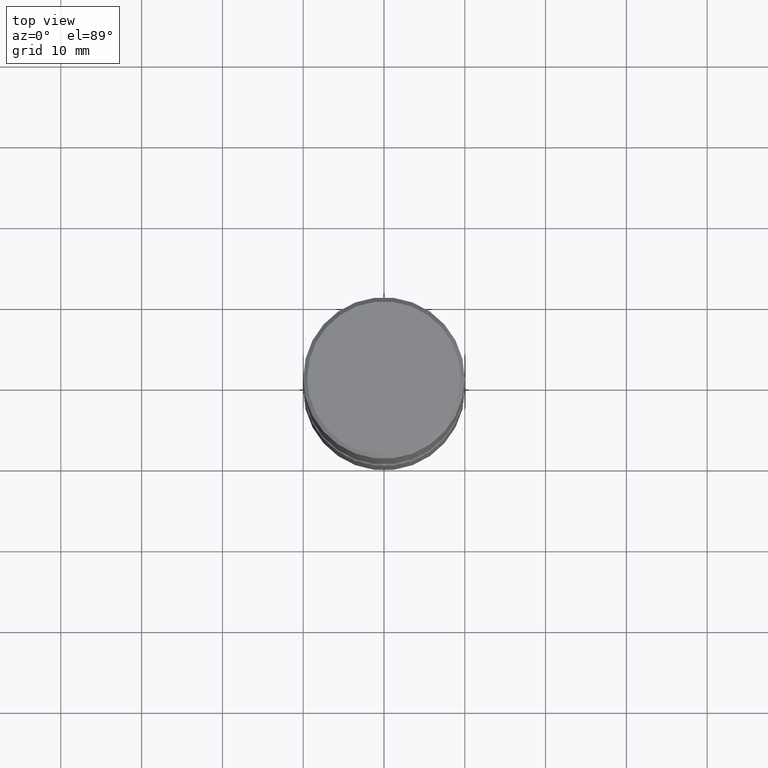
[diagram: clean part render]
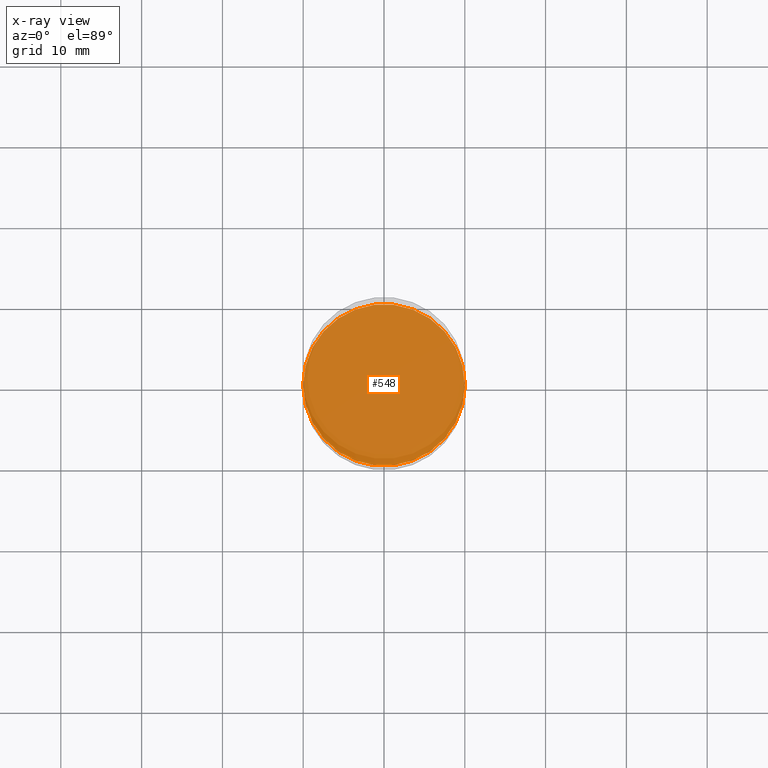
[diagram: x-ray — body ghosted, one internal face saturated and labeled with its STEP entity id]
A machine part, top view, then the same camera in x-ray: the body is ghosted and one INTERNAL B-rep face — a face not visible from any outside direction — is saturated and labeled: STEP entity #548.
In plain terms, the highlighted planar face has unit normal (0, -0, -1).
Its self-contained STEP definition (entity closure, byte-faithful):
#6 = EDGE_CURVE ( 'NONE', #76, #44, #375, .T. ) ;
#18 = FACE_OUTER_BOUND ( 'NONE', #341, .T. ) ;
#44 = VERTEX_POINT ( 'NONE', #331 ) ;
#76 = VERTEX_POINT ( 'NONE', #112 ) ;
#105 = DIRECTION ( 'NONE',  ( -1.000000000000000000, 6.982962677686265922E-15, -4.876176775795935793E-29 ) ) ;
#112 = CARTESIAN_POINT ( 'NONE',  ( 0.3937000000000003830, -9.759388638334355360E-15, -2.007800000000000473 ) ) ;
#113 = AXIS2_PLACEMENT_3D ( 'NONE', #452, #188, #406 ) ;
#139 = CARTESIAN_POINT ( 'NONE',  ( 4.910012269058518206E-29, -7.010196232129268988E-15, -2.007800000000000473 ) ) ;
#183 = EDGE_CURVE ( 'NONE', #44, #76, #420, .T. ) ;
#187 = PLANE ( 'NONE',  #354 ) ;
#188 = DIRECTION ( 'NONE',  ( -2.445468806185136597E-29, 3.491481338843145583E-15, 1.000000000000000000 ) ) ;
#199 = DIRECTION ( 'NONE',  ( 1.000000000000000000, -6.982962677686269077E-15, 0.000000000000000000 ) ) ;
#286 = DIRECTION ( 'NONE',  ( -2.445468806185136597E-29, 3.491481338843145583E-15, 1.000000000000000000 ) ) ;
#331 = CARTESIAN_POINT ( 'NONE',  ( -0.3937000000000003830, -6.412248150845989772E-15, -2.007800000000000473 ) ) ;
#341 = EDGE_LOOP ( 'NONE', ( #363, #424 ) ) ;
#354 = AXIS2_PLACEMENT_3D ( 'NONE', #139, #495, #105 ) ;
#363 = ORIENTED_EDGE ( 'NONE', *, *, #6, .T. ) ;
#372 = CARTESIAN_POINT ( 'NONE',  ( 4.910012269058518206E-29, -7.010196232129268988E-15, -2.007800000000000473 ) ) ;
#375 = CIRCLE ( 'NONE', #430, 0.3937000000000003830 ) ;
#406 = DIRECTION ( 'NONE',  ( 1.000000000000000000, -6.982962677686269077E-15, 0.000000000000000000 ) ) ;
#420 = CIRCLE ( 'NONE', #113, 0.3937000000000003830 ) ;
#424 = ORIENTED_EDGE ( 'NONE', *, *, #183, .T. ) ;
#430 = AXIS2_PLACEMENT_3D ( 'NONE', #372, #286, #199 ) ;
#452 = CARTESIAN_POINT ( 'NONE',  ( 4.910012269058518206E-29, -7.010196232129268988E-15, -2.007800000000000473 ) ) ;
#495 = DIRECTION ( 'NONE',  ( 2.438088387897960049E-29, -3.491481338843145188E-15, -1.000000000000000000 ) ) ;
#548 = ADVANCED_FACE ( 'NONE', ( #18 ), #187, .F. ) ;